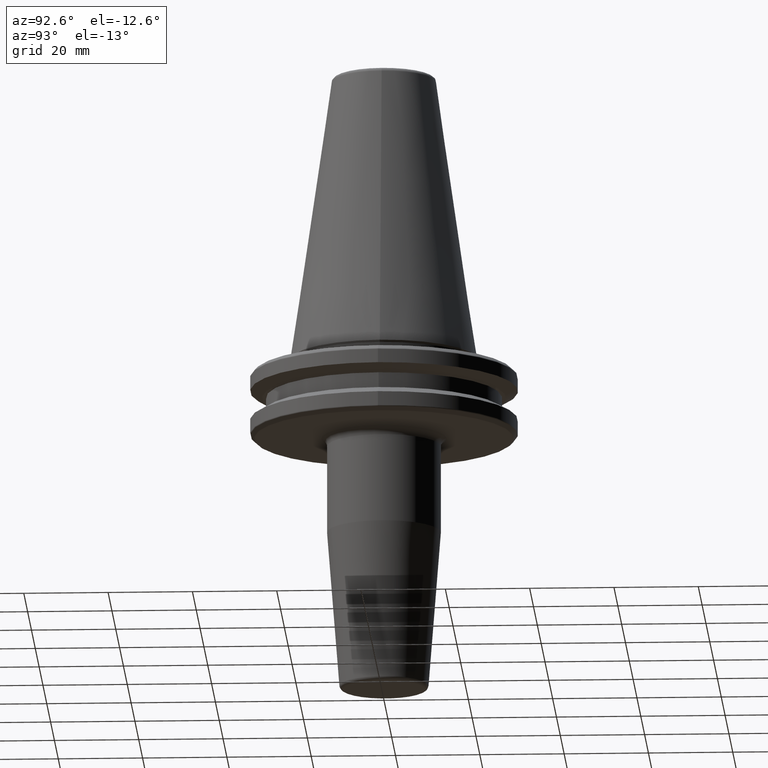
[diagram: clean part render]
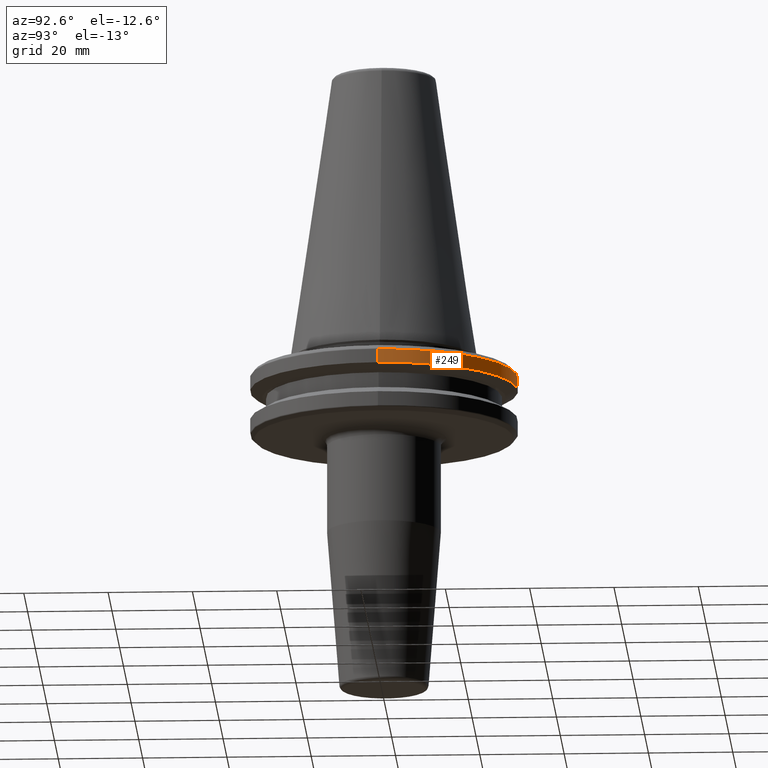
[diagram: same view with one face highlighted and labeled with its STEP entity id]
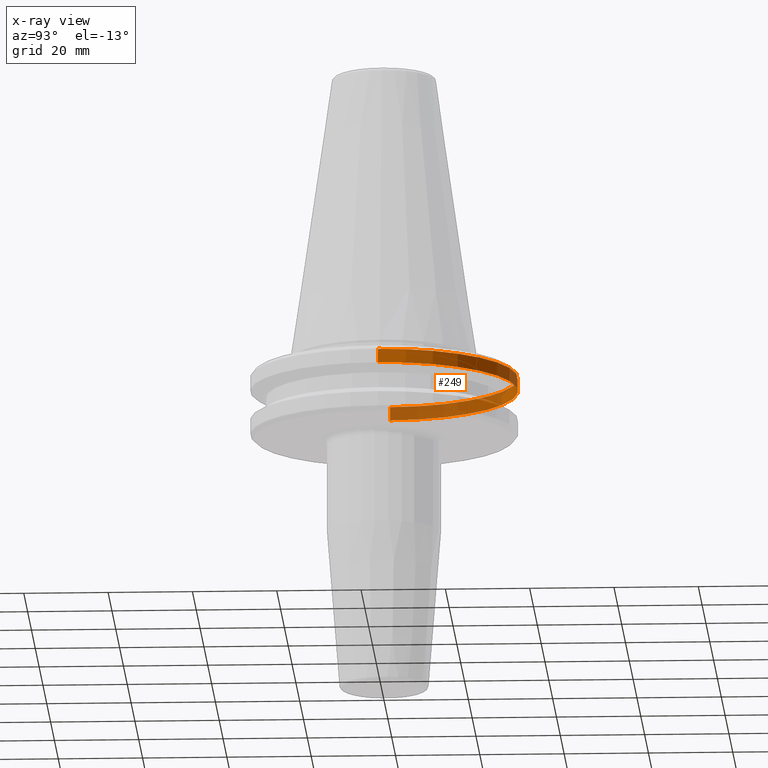
[diagram: x-ray of the same camera — body ghosted, the highlighted face saturated]
A machine part, auxiliary view. The second image highlights one B-rep face of the part: STEP entity #249.
The next image is the same camera in x-ray: the body ghosted, the highlighted face saturated — about 42% of this face is hidden behind the body in this view.
In plain terms, the highlighted cylindrical surface (partial cylindrical patch) has radius 31.75 mm, axis along (-0, -0, 1).
Its self-contained STEP definition (entity closure, byte-faithful):
#55 = ORIENTED_EDGE ( 'NONE', *, *, #354, .F. ) ;
#108 = LINE ( 'NONE', #776, #1109 ) ;
#111 = FACE_OUTER_BOUND ( 'NONE', #575, .T. ) ;
#186 = DIRECTION ( 'NONE',  ( -0.0000000000000000000, -0.0000000000000000000, 1.000000000000000000 ) ) ;
#189 = CARTESIAN_POINT ( 'NONE',  ( 31.75000000000000000, 0.0000000000000000000, -4.365685424949250000 ) ) ;
#211 = EDGE_CURVE ( 'NONE', #665, #509, #420, .T. ) ;
#218 = VECTOR ( 'NONE', #186, 1000.000000000000000 ) ;
#225 = CARTESIAN_POINT ( 'NONE',  ( 0.0000000000000000000, 0.0000000000000000000, 113.5216080541959500 ) ) ;
#249 = ADVANCED_FACE ( 'NONE', ( #111 ), #852, .T. ) ;
#286 = CARTESIAN_POINT ( 'NONE',  ( 31.75000000000000000, 0.0000000000000000000, 113.5216080541959500 ) ) ;
#354 = EDGE_CURVE ( 'NONE', #665, #604, #484, .T. ) ;
#384 = EDGE_CURVE ( 'NONE', #604, #1196, #544, .T. ) ;
#391 = CARTESIAN_POINT ( 'NONE',  ( 0.0000000000000000000, 0.0000000000000000000, -4.365685424949250000 ) ) ;
#420 = CIRCLE ( 'NONE', #487, 31.75000000000000000 ) ;
#469 = CARTESIAN_POINT ( 'NONE',  ( 31.75000000000000000, 0.0000000000000000000, -7.578163357943284800 ) ) ;
#484 = LINE ( 'NONE', #286, #218 ) ;
#487 = AXIS2_PLACEMENT_3D ( 'NONE', #1067, #881, #591 ) ;
#509 = VERTEX_POINT ( 'NONE', #677 ) ;
#544 = CIRCLE ( 'NONE', #1246, 31.75000000000000000 ) ;
#575 = EDGE_LOOP ( 'NONE', ( #693, #1169, #835, #55 ) ) ;
#591 = DIRECTION ( 'NONE',  ( 1.000000000000000000, 0.0000000000000000000, 0.0000000000000000000 ) ) ;
#604 = VERTEX_POINT ( 'NONE', #189 ) ;
#665 = VERTEX_POINT ( 'NONE', #469 ) ;
#677 = CARTESIAN_POINT ( 'NONE',  ( -31.75000000000000000, 3.888253587292846500E-015, -7.578163357943284800 ) ) ;
#693 = ORIENTED_EDGE ( 'NONE', *, *, #211, .T. ) ;
#776 = CARTESIAN_POINT ( 'NONE',  ( -31.75000000000000000, 3.888253587292846500E-015, 113.5216080541959500 ) ) ;
#800 = DIRECTION ( 'NONE',  ( 1.000000000000000000, 0.0000000000000000000, 0.0000000000000000000 ) ) ;
#803 = EDGE_CURVE ( 'NONE', #509, #1196, #108, .T. ) ;
#813 = DIRECTION ( 'NONE',  ( -0.0000000000000000000, -0.0000000000000000000, 1.000000000000000000 ) ) ;
#835 = ORIENTED_EDGE ( 'NONE', *, *, #384, .F. ) ;
#852 = CYLINDRICAL_SURFACE ( 'NONE', #895, 31.75000000000000000 ) ;
#868 = DIRECTION ( 'NONE',  ( 1.000000000000000000, 0.0000000000000000000, 0.0000000000000000000 ) ) ;
#881 = DIRECTION ( 'NONE',  ( -0.0000000000000000000, -0.0000000000000000000, 1.000000000000000000 ) ) ;
#895 = AXIS2_PLACEMENT_3D ( 'NONE', #225, #1199, #800 ) ;
#1067 = CARTESIAN_POINT ( 'NONE',  ( 0.0000000000000000000, 0.0000000000000000000, -7.578163357943284800 ) ) ;
#1109 = VECTOR ( 'NONE', #813, 1000.000000000000000 ) ;
#1169 = ORIENTED_EDGE ( 'NONE', *, *, #803, .T. ) ;
#1172 = DIRECTION ( 'NONE',  ( -0.0000000000000000000, -0.0000000000000000000, 1.000000000000000000 ) ) ;
#1196 = VERTEX_POINT ( 'NONE', #1229 ) ;
#1199 = DIRECTION ( 'NONE',  ( -0.0000000000000000000, -0.0000000000000000000, 1.000000000000000000 ) ) ;
#1229 = CARTESIAN_POINT ( 'NONE',  ( -31.75000000000000000, 3.888253587292846500E-015, -4.365685424949250000 ) ) ;
#1246 = AXIS2_PLACEMENT_3D ( 'NONE', #391, #1172, #868 ) ;